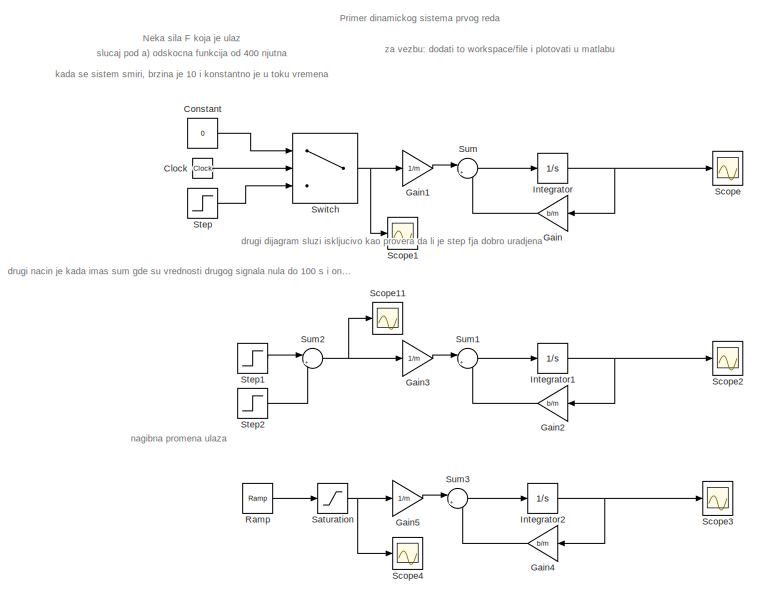
[diagram: root canvas - part 1/5, top left region]
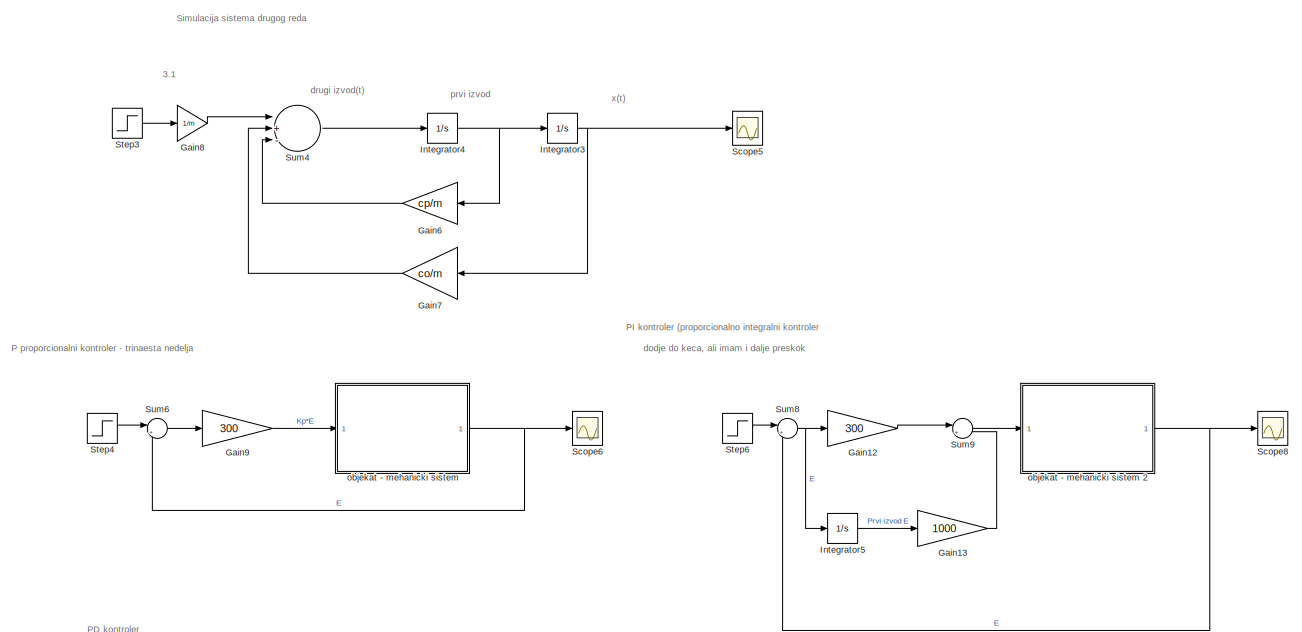
[diagram: root canvas - part 2/5, central region]
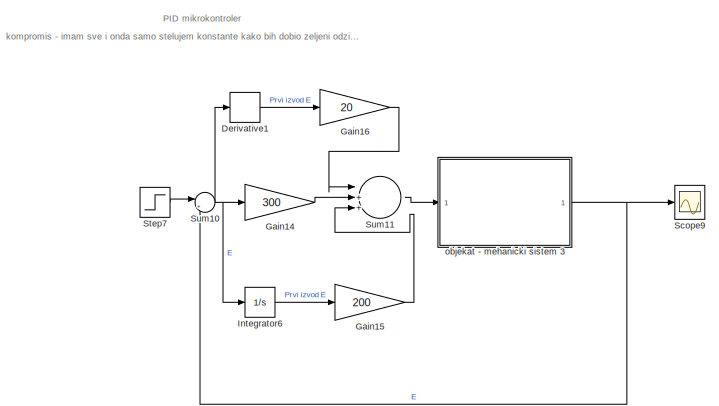
[diagram: root canvas - part 3/5, middle right region]
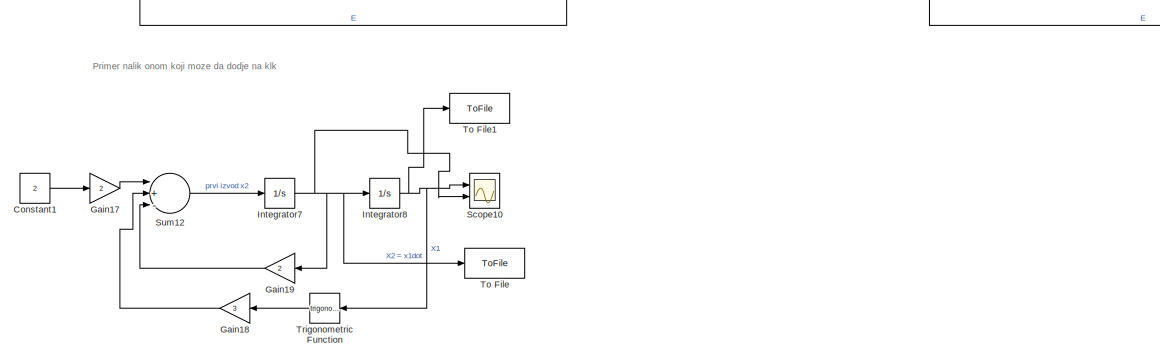
[diagram: root canvas - part 4/5, bottom right region]
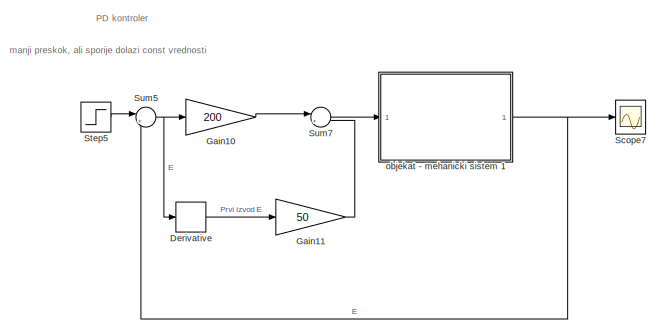
[diagram: root canvas - part 5/5, bottom center region]
MODEL slx_e0392a713f80
KIND model
CONFIG AbsTol = auto
CONFIG EnableMultiTasking = off
CONFIG FixedStep = .01
CONFIG MaxStep = auto
CONFIG MinStep = auto
CONFIG RelTol = 1e-3
CONFIG SampleTimeConstraint = Unconstrained
CONFIG Solver = ode4
CONFIG SolverName = ode4
CONFIG StartTime = 0.0
CONFIG StopTime = 200
BLOCK [Clock] Clock
BLOCK [Constant] Constant
  Value = 0
BLOCK [Constant] Constant1
  Value = 2
BLOCK [Derivative] Derivative
BLOCK [Derivative] Derivative1
BLOCK [Gain] Gain
  Gain = b/m
  OutDataTypeStr = Inherit: Inherit via internal rule
  ParamDataTypeStr = Inherit: Inherit via internal rule
  SaturateOnIntegerOverflow = off
BLOCK [Gain] Gain1
  Gain = 1/m
  OutDataTypeStr = Inherit: Inherit via internal rule
  ParamDataTypeStr = Inherit: Inherit via internal rule
  SaturateOnIntegerOverflow = off
BLOCK [Gain] Gain10
  Gain = 200
  OutDataTypeStr = Inherit: Inherit via internal rule
  ParamDataTypeStr = Inherit: Inherit via internal rule
  SaturateOnIntegerOverflow = off
BLOCK [Gain] Gain11
  Gain = 50
  OutDataTypeStr = Inherit: Inherit via internal rule
  ParamDataTypeStr = Inherit: Inherit via internal rule
  SaturateOnIntegerOverflow = off
BLOCK [Gain] Gain12
  Gain = 300
  OutDataTypeStr = Inherit: Inherit via internal rule
  ParamDataTypeStr = Inherit: Inherit via internal rule
  SaturateOnIntegerOverflow = off
BLOCK [Gain] Gain13
  Gain = 1000
  OutDataTypeStr = Inherit: Inherit via internal rule
  ParamDataTypeStr = Inherit: Inherit via internal rule
  SaturateOnIntegerOverflow = off
BLOCK [Gain] Gain14
  Gain = 300
  OutDataTypeStr = Inherit: Inherit via internal rule
  ParamDataTypeStr = Inherit: Inherit via internal rule
  SaturateOnIntegerOverflow = off
BLOCK [Gain] Gain15
  Gain = 200
  OutDataTypeStr = Inherit: Inherit via internal rule
  ParamDataTypeStr = Inherit: Inherit via internal rule
  SaturateOnIntegerOverflow = off
BLOCK [Gain] Gain16
  Gain = 20
  OutDataTypeStr = Inherit: Inherit via internal rule
  ParamDataTypeStr = Inherit: Inherit via internal rule
  SaturateOnIntegerOverflow = off
BLOCK [Gain] Gain17
  Gain = 2
  OutDataTypeStr = Inherit: Inherit via internal rule
  ParamDataTypeStr = Inherit: Inherit via internal rule
  SaturateOnIntegerOverflow = off
BLOCK [Gain] Gain18
  Gain = 3
  OutDataTypeStr = Inherit: Inherit via internal rule
  ParamDataTypeStr = Inherit: Inherit via internal rule
  SaturateOnIntegerOverflow = off
BLOCK [Gain] Gain19
  Gain = 2
  OutDataTypeStr = Inherit: Inherit via internal rule
  ParamDataTypeStr = Inherit: Inherit via internal rule
  SaturateOnIntegerOverflow = off
BLOCK [Gain] Gain2
  Gain = b/m
  OutDataTypeStr = Inherit: Inherit via internal rule
  ParamDataTypeStr = Inherit: Inherit via internal rule
  SaturateOnIntegerOverflow = off
BLOCK [Gain] Gain3
  Gain = 1/m
  OutDataTypeStr = Inherit: Inherit via internal rule
  ParamDataTypeStr = Inherit: Inherit via internal rule
  SaturateOnIntegerOverflow = off
BLOCK [Gain] Gain4
  Gain = b/m
  OutDataTypeStr = Inherit: Inherit via internal rule
  ParamDataTypeStr = Inherit: Inherit via internal rule
  SaturateOnIntegerOverflow = off
BLOCK [Gain] Gain5
  Gain = 1/m
  OutDataTypeStr = Inherit: Inherit via internal rule
  ParamDataTypeStr = Inherit: Inherit via internal rule
  SaturateOnIntegerOverflow = off
BLOCK [Gain] Gain6
  Gain = cp/m
  OutDataTypeStr = Inherit: Inherit via internal rule
  ParamDataTypeStr = Inherit: Inherit via internal rule
  SaturateOnIntegerOverflow = off
BLOCK [Gain] Gain7
  Gain = co/m
  OutDataTypeStr = Inherit: Inherit via internal rule
  ParamDataTypeStr = Inherit: Inherit via internal rule
  SaturateOnIntegerOverflow = off
BLOCK [Gain] Gain8
  Gain = 1/m
  OutDataTypeStr = Inherit: Inherit via internal rule
  ParamDataTypeStr = Inherit: Inherit via internal rule
  SaturateOnIntegerOverflow = off
BLOCK [Gain] Gain9
  Gain = 300
  OutDataTypeStr = Inherit: Inherit via internal rule
  ParamDataTypeStr = Inherit: Inherit via internal rule
  SaturateOnIntegerOverflow = off
BLOCK [Integrator] Integrator
  Ports = [1, 1]
BLOCK [Integrator] Integrator1
  Ports = [1, 1]
BLOCK [Integrator] Integrator2
  Ports = [1, 1]
BLOCK [Integrator] Integrator3
  Ports = [1, 1]
BLOCK [Integrator] Integrator4
  Ports = [1, 1]
BLOCK [Integrator] Integrator5
  Ports = [1, 1]
BLOCK [Integrator] Integrator6
  Ports = [1, 1]
BLOCK [Integrator] Integrator7
  Ports = [1, 1]
BLOCK [Integrator] Integrator8
  Ports = [1, 1]
BLOCK [Reference] Ramp  REF=simulink/Sources/Ramp
  Ports = [0, 1]
  SourceBlock = simulink/Sources/Ramp
  SourceProductBaseCode = SL
  SourceProductName = Simulink
  SourceType = Ramp
BLOCK [Saturate] Saturation
  InputPortMap = u0
  LowerLimit = 0
  Ports = [1, 1]
  UpperLimit = 2000
BLOCK [Scope] Scope
  Floating = off
  NumInputPorts = 1
  Ports = [1]
  ScopeSpecificationString = Simulink.scopes.TimeScopeBlockCfg('CurrentConfiguration', extmgr.ConfigurationSet(extmgr.Configuration('Core','General UI',true),extmgr.Configuration('Core','Source UI',true),extmgr.Configuration('Sources','WiredSimulink',true),extmgr.Configuration('Visuals','Time Domain',true,'SerializedDisplays',{struct('MinYLimReal','-4.75816','MaxYLimReal','42.82348','YLabelReal','','MinYLimMag','0.00000','Max...<+1417ch>
BLOCK [Scope] Scope1
  Floating = off
  NumInputPorts = 1
  Ports = [1]
  ScopeSpecificationString = Simulink.scopes.TimeScopeBlockCfg('CurrentConfiguration', extmgr.ConfigurationSet(extmgr.Configuration('Core','General UI',true),extmgr.Configuration('Core','Source UI',true),extmgr.Configuration('Sources','WiredSimulink',true,'DataLoggingVariableName','ScopeData1'),extmgr.Configuration('Visuals','Time Domain',true,'SerializedDisplays',{struct('MinYLimReal','-50.00000','MaxYLimReal','450.00000','Y...<+1408ch>
BLOCK [Scope] Scope10
  Floating = off
  NumInputPorts = 2
  Ports = [2]
  ScopeSpecificationString = Simulink.scopes.TimeScopeBlockCfg('CurrentConfiguration', extmgr.ConfigurationSet(extmgr.Configuration('Core','General UI',true),extmgr.Configuration('Core','Source UI',true),extmgr.Configuration('Sources','WiredSimulink',true,'DataLoggingVariableName','ScopeData5'),extmgr.Configuration('Visuals','Time Domain',true,'SerializedDisplays',{struct('MinYLimReal','-0.15932','MaxYLimReal','1.43386','YLab...<+2231ch>
BLOCK [Scope] Scope11
  Floating = off
  NumInputPorts = 1
  Ports = [1]
  ScopeSpecificationString = Simulink.scopes.TimeScopeBlockCfg('CurrentConfiguration', extmgr.ConfigurationSet(extmgr.Configuration('Core','General UI',true),extmgr.Configuration('Core','Source UI',true),extmgr.Configuration('Sources','WiredSimulink',true,'DataLoggingVariableName','ScopeData1'),extmgr.Configuration('Visuals','Time Domain',true,'SerializedDisplays',{struct('MinYLimReal','-50.00000','MaxYLimReal','450.00000','Y...<+1406ch>
BLOCK [Scope] Scope2
  Floating = off
  NumInputPorts = 1
  Ports = [1]
  ScopeSpecificationString = Simulink.scopes.TimeScopeBlockCfg('CurrentConfiguration', extmgr.ConfigurationSet(extmgr.Configuration('Core','General UI',true),extmgr.Configuration('Core','Source UI',true),extmgr.Configuration('Sources','WiredSimulink',true,'DataLoggingVariableName','ScopeData2'),extmgr.Configuration('Visuals','Time Domain',true,'SerializedDisplays',{struct('MinYLimReal','-4.75805','MaxYLimReal','42.82241','YLa...<+1455ch>
BLOCK [Scope] Scope3
  Floating = off
  NumInputPorts = 1
  Ports = [1]
  ScopeSpecificationString = Simulink.scopes.TimeScopeBlockCfg('CurrentConfiguration', extmgr.ConfigurationSet(extmgr.Configuration('Core','General UI',true),extmgr.Configuration('Core','Source UI',true),extmgr.Configuration('Sources','WiredSimulink',true,'DataLoggingVariableName','ScopeData3'),extmgr.Configuration('Visuals','Time Domain',true,'SerializedDisplays',{struct('MinYLimReal','-42.73732','MaxYLimReal','384.63591','Y...<+1460ch>
BLOCK [Scope] Scope4
  Floating = off
  NumInputPorts = 1
  Ports = [1]
  ScopeSpecificationString = Simulink.scopes.TimeScopeBlockCfg('CurrentConfiguration', extmgr.ConfigurationSet(extmgr.Configuration('Core','General UI',true),extmgr.Configuration('Core','Source UI',true),extmgr.Configuration('Sources','WiredSimulink',true,'DataLoggingVariableName','ScopeData4'),extmgr.Configuration('Visuals','Time Domain',true,'SerializedDisplays',{struct('MinYLimReal','-250.00000','MaxYLimReal','2250.00000',...<+1420ch>
BLOCK [Scope] Scope5
  Floating = off
  NumInputPorts = 1
  Ports = [1]
  ScopeSpecificationString = Simulink.scopes.TimeScopeBlockCfg('CurrentConfiguration', extmgr.ConfigurationSet(extmgr.Configuration('Core','General UI',true),extmgr.Configuration('Core','Source UI',true),extmgr.Configuration('Sources','WiredSimulink',true,'DataLoggingVariableName','ScopeData5'),extmgr.Configuration('Visuals','Time Domain',true,'SerializedDisplays',{struct('MinYLimReal','-0.625','MaxYLimReal','5.625','YLabelRe...<+1440ch>
BLOCK [Scope] Scope6
  Floating = off
  NumInputPorts = 1
  Ports = [1]
  ScopeSpecificationString = Simulink.scopes.TimeScopeBlockCfg('CurrentConfiguration', extmgr.ConfigurationSet(extmgr.Configuration('Core','General UI',true),extmgr.Configuration('Core','Source UI',true),extmgr.Configuration('Sources','WiredSimulink',true,'DataLoggingVariableName','ScopeData1'),extmgr.Configuration('Visuals','Time Domain',true,'SerializedDisplays',{struct('MinYLimReal','-0.15932','MaxYLimReal','1.43386','YLab...<+1460ch>
BLOCK [Scope] Scope7
  Floating = off
  NumInputPorts = 1
  Ports = [1]
  ScopeSpecificationString = Simulink.scopes.TimeScopeBlockCfg('CurrentConfiguration', extmgr.ConfigurationSet(extmgr.Configuration('Core','General UI',true),extmgr.Configuration('Core','Source UI',true),extmgr.Configuration('Sources','WiredSimulink',true,'DataLoggingVariableName','ScopeData2'),extmgr.Configuration('Visuals','Time Domain',true,'SerializedDisplays',{struct('MinYLimReal','-0.15932','MaxYLimReal','1.43386','YLab...<+1491ch>
BLOCK [Scope] Scope8
  Floating = off
  NumInputPorts = 1
  Ports = [1]
  ScopeSpecificationString = Simulink.scopes.TimeScopeBlockCfg('CurrentConfiguration', extmgr.ConfigurationSet(extmgr.Configuration('Core','General UI',true),extmgr.Configuration('Core','Source UI',true),extmgr.Configuration('Sources','WiredSimulink',true,'DataLoggingVariableName','ScopeData3'),extmgr.Configuration('Visuals','Time Domain',true,'SerializedDisplays',{struct('MinYLimReal','-0.15932','MaxYLimReal','1.43386','YLab...<+1490ch>
BLOCK [Scope] Scope9
  Floating = off
  NumInputPorts = 1
  Ports = [1]
  ScopeSpecificationString = Simulink.scopes.TimeScopeBlockCfg('CurrentConfiguration', extmgr.ConfigurationSet(extmgr.Configuration('Core','General UI',true),extmgr.Configuration('Core','Source UI',true),extmgr.Configuration('Sources','WiredSimulink',true,'DataLoggingVariableName','ScopeData4'),extmgr.Configuration('Visuals','Time Domain',true,'SerializedDisplays',{struct('MinYLimReal','-0.15932','MaxYLimReal','1.43386','YLab...<+1490ch>
BLOCK [Step] Step
  After = 400
  SampleTime = 0
  Time = 0
BLOCK [Step] Step1
  After = 400
  SampleTime = 0
  Time = 0
BLOCK [Step] Step2
  After = -400
  SampleTime = 0
  Time = 100
BLOCK [Step] Step3
  After = 100
  SampleTime = 0
  Time = 0
BLOCK [Step] Step4
  SampleTime = 0
  Time = 0
BLOCK [Step] Step5
  SampleTime = 0
  Time = 0
BLOCK [Step] Step6
  SampleTime = 0
  Time = 0
BLOCK [Step] Step7
  SampleTime = 0
  Time = 0
BLOCK [Sum] Sum
  IconShape = round
  InputSameDT = off
  Inputs = |+-
  OutDataTypeStr = Inherit: Inherit via internal rule
  Ports = [2, 1]
  SaturateOnIntegerOverflow = off
BLOCK [Sum] Sum1
  IconShape = round
  InputSameDT = off
  Inputs = |+-
  OutDataTypeStr = Inherit: Inherit via internal rule
  Ports = [2, 1]
  SaturateOnIntegerOverflow = off
BLOCK [Sum] Sum10
  IconShape = round
  InputSameDT = off
  Inputs = |+-
  OutDataTypeStr = Inherit: Inherit via internal rule
  Ports = [2, 1]
  SaturateOnIntegerOverflow = off
BLOCK [Sum] Sum11
  InputSameDT = off
  Inputs = |+++
  OutDataTypeStr = Inherit: Inherit via internal rule
  Ports = [3, 1]
  SaturateOnIntegerOverflow = off
BLOCK [Sum] Sum12
  InputSameDT = off
  Inputs = |+--
  OutDataTypeStr = Inherit: Inherit via internal rule
  Ports = [3, 1]
  SaturateOnIntegerOverflow = off
BLOCK [Sum] Sum2
  IconShape = round
  InputSameDT = off
  Inputs = |++
  OutDataTypeStr = Inherit: Inherit via internal rule
  Ports = [2, 1]
  SaturateOnIntegerOverflow = off
BLOCK [Sum] Sum3
  IconShape = round
  InputSameDT = off
  Inputs = |+-
  OutDataTypeStr = Inherit: Inherit via internal rule
  Ports = [2, 1]
  SaturateOnIntegerOverflow = off
BLOCK [Sum] Sum4
  InputSameDT = off
  Inputs = |+--
  OutDataTypeStr = Inherit: Inherit via internal rule
  Ports = [3, 1]
  SaturateOnIntegerOverflow = off
BLOCK [Sum] Sum5
  IconShape = round
  InputSameDT = off
  Inputs = |+-
  OutDataTypeStr = Inherit: Inherit via internal rule
  Ports = [2, 1]
  SaturateOnIntegerOverflow = off
BLOCK [Sum] Sum6
  IconShape = round
  InputSameDT = off
  Inputs = |+-
  OutDataTypeStr = Inherit: Inherit via internal rule
  Ports = [2, 1]
  SaturateOnIntegerOverflow = off
BLOCK [Sum] Sum7
  IconShape = round
  InputSameDT = off
  Inputs = |++
  OutDataTypeStr = Inherit: Inherit via internal rule
  Ports = [2, 1]
  SaturateOnIntegerOverflow = off
BLOCK [Sum] Sum8
  IconShape = round
  InputSameDT = off
  Inputs = |+-
  OutDataTypeStr = Inherit: Inherit via internal rule
  Ports = [2, 1]
  SaturateOnIntegerOverflow = off
BLOCK [Sum] Sum9
  IconShape = round
  InputSameDT = off
  Inputs = |++
  OutDataTypeStr = Inherit: Inherit via internal rule
  Ports = [2, 1]
  SaturateOnIntegerOverflow = off
BLOCK [Switch] Switch
  Criteria = u2 > Threshold
  InputSameDT = off
  SaturateOnIntegerOverflow = off
  Threshold = 100
BLOCK [ToFile] To File
  Filename = prvaJna.mat
  MatrixName = x2
  Ports = [1]
BLOCK [ToFile] To File1
  Filename = drugaJna.mat
  MatrixName = x1
  Ports = [1]
BLOCK [Trigonometry] Trigonometric Function
  Ports = [1, 1]
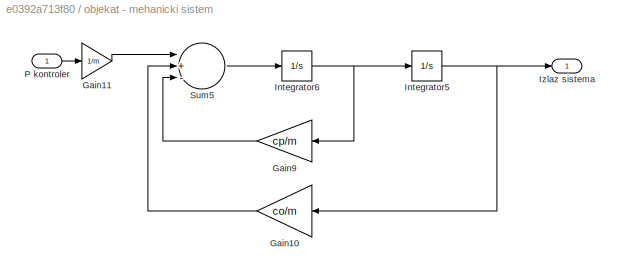
BLOCK [SubSystem] objekat - mehanicki sistem 
  Ports = [1, 1]
  RequestExecContextInheritance = off
BLOCK [Gain] objekat - mehanicki sistem /Gain10
  Gain = co/m
  OutDataTypeStr = Inherit: Inherit via internal rule
  ParamDataTypeStr = Inherit: Inherit via internal rule
  SaturateOnIntegerOverflow = off
BLOCK [Gain] objekat - mehanicki sistem /Gain11
  Gain = 1/m
  OutDataTypeStr = Inherit: Inherit via internal rule
  ParamDataTypeStr = Inherit: Inherit via internal rule
  SaturateOnIntegerOverflow = off
BLOCK [Gain] objekat - mehanicki sistem /Gain9
  Gain = cp/m
  OutDataTypeStr = Inherit: Inherit via internal rule
  ParamDataTypeStr = Inherit: Inherit via internal rule
  SaturateOnIntegerOverflow = off
BLOCK [Integrator] objekat - mehanicki sistem /Integrator5
  Ports = [1, 1]
BLOCK [Integrator] objekat - mehanicki sistem /Integrator6
  Ports = [1, 1]
BLOCK [Outport] objekat - mehanicki sistem /Izlaz sistema
  IconDisplay = Port number
BLOCK [Inport] objekat - mehanicki sistem /P kontroler
  IconDisplay = Port number
BLOCK [Sum] objekat - mehanicki sistem /Sum5
  InputSameDT = off
  Inputs = |+--
  OutDataTypeStr = Inherit: Inherit via internal rule
  Ports = [3, 1]
  SaturateOnIntegerOverflow = off
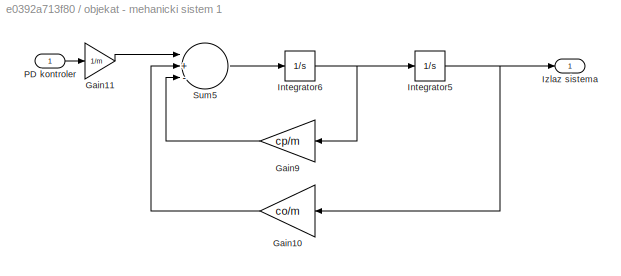
BLOCK [SubSystem] objekat - mehanicki sistem 1
  Ports = [1, 1]
  RequestExecContextInheritance = off
BLOCK [Gain] objekat - mehanicki sistem 1/Gain10
  Gain = co/m
  OutDataTypeStr = Inherit: Inherit via internal rule
  ParamDataTypeStr = Inherit: Inherit via internal rule
  SaturateOnIntegerOverflow = off
BLOCK [Gain] objekat - mehanicki sistem 1/Gain11
  Gain = 1/m
  OutDataTypeStr = Inherit: Inherit via internal rule
  ParamDataTypeStr = Inherit: Inherit via internal rule
  SaturateOnIntegerOverflow = off
BLOCK [Gain] objekat - mehanicki sistem 1/Gain9
  Gain = cp/m
  OutDataTypeStr = Inherit: Inherit via internal rule
  ParamDataTypeStr = Inherit: Inherit via internal rule
  SaturateOnIntegerOverflow = off
BLOCK [Integrator] objekat - mehanicki sistem 1/Integrator5
  Ports = [1, 1]
BLOCK [Integrator] objekat - mehanicki sistem 1/Integrator6
  Ports = [1, 1]
BLOCK [Outport] objekat - mehanicki sistem 1/Izlaz sistema
  IconDisplay = Port number
BLOCK [Inport] objekat - mehanicki sistem 1/PD kontroler
  IconDisplay = Port number
BLOCK [Sum] objekat - mehanicki sistem 1/Sum5
  InputSameDT = off
  Inputs = |+--
  OutDataTypeStr = Inherit: Inherit via internal rule
  Ports = [3, 1]
  SaturateOnIntegerOverflow = off
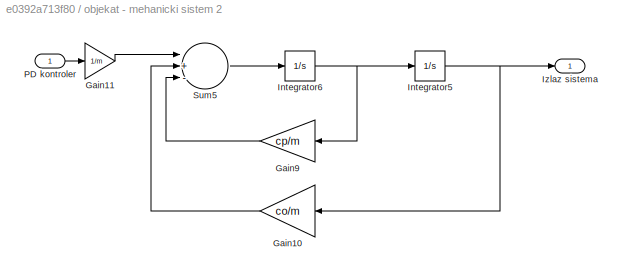
BLOCK [SubSystem] objekat - mehanicki sistem 2
  Ports = [1, 1]
  RequestExecContextInheritance = off
BLOCK [Gain] objekat - mehanicki sistem 2/Gain10
  Gain = co/m
  OutDataTypeStr = Inherit: Inherit via internal rule
  ParamDataTypeStr = Inherit: Inherit via internal rule
  SaturateOnIntegerOverflow = off
BLOCK [Gain] objekat - mehanicki sistem 2/Gain11
  Gain = 1/m
  OutDataTypeStr = Inherit: Inherit via internal rule
  ParamDataTypeStr = Inherit: Inherit via internal rule
  SaturateOnIntegerOverflow = off
BLOCK [Gain] objekat - mehanicki sistem 2/Gain9
  Gain = cp/m
  OutDataTypeStr = Inherit: Inherit via internal rule
  ParamDataTypeStr = Inherit: Inherit via internal rule
  SaturateOnIntegerOverflow = off
BLOCK [Integrator] objekat - mehanicki sistem 2/Integrator5
  Ports = [1, 1]
BLOCK [Integrator] objekat - mehanicki sistem 2/Integrator6
  Ports = [1, 1]
BLOCK [Outport] objekat - mehanicki sistem 2/Izlaz sistema
  IconDisplay = Port number
BLOCK [Inport] objekat - mehanicki sistem 2/PD kontroler
  IconDisplay = Port number
BLOCK [Sum] objekat - mehanicki sistem 2/Sum5
  InputSameDT = off
  Inputs = |+--
  OutDataTypeStr = Inherit: Inherit via internal rule
  Ports = [3, 1]
  SaturateOnIntegerOverflow = off
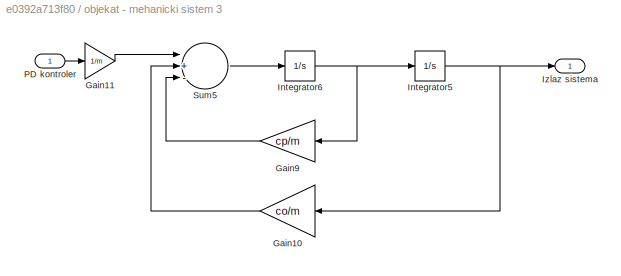
BLOCK [SubSystem] objekat - mehanicki sistem 3
  Ports = [1, 1]
  RequestExecContextInheritance = off
BLOCK [Gain] objekat - mehanicki sistem 3/Gain10
  Gain = co/m
  OutDataTypeStr = Inherit: Inherit via internal rule
  ParamDataTypeStr = Inherit: Inherit via internal rule
  SaturateOnIntegerOverflow = off
BLOCK [Gain] objekat - mehanicki sistem 3/Gain11
  Gain = 1/m
  OutDataTypeStr = Inherit: Inherit via internal rule
  ParamDataTypeStr = Inherit: Inherit via internal rule
  SaturateOnIntegerOverflow = off
BLOCK [Gain] objekat - mehanicki sistem 3/Gain9
  Gain = cp/m
  OutDataTypeStr = Inherit: Inherit via internal rule
  ParamDataTypeStr = Inherit: Inherit via internal rule
  SaturateOnIntegerOverflow = off
BLOCK [Integrator] objekat - mehanicki sistem 3/Integrator5
  Ports = [1, 1]
BLOCK [Integrator] objekat - mehanicki sistem 3/Integrator6
  Ports = [1, 1]
BLOCK [Outport] objekat - mehanicki sistem 3/Izlaz sistema
  IconDisplay = Port number
BLOCK [Inport] objekat - mehanicki sistem 3/PD kontroler
  IconDisplay = Port number
BLOCK [Sum] objekat - mehanicki sistem 3/Sum5
  InputSameDT = off
  Inputs = |+--
  OutDataTypeStr = Inherit: Inherit via internal rule
  Ports = [3, 1]
  SaturateOnIntegerOverflow = off
ANNOTATION (root): 3.1
ANNOTATION (root): Neka sila F koja je ulaz
ANNOTATION (root): P proporcionalni kontroler - trinaesta nedelja
ANNOTATION (root): PD kontroler
ANNOTATION (root): PI kontroler (proporcionalno integralni kontroler
ANNOTATION (root): PID mikrokontroler
ANNOTATION (root): Primer dinamickog sistema prvog reda
ANNOTATION (root): Primer nalik onom koji moze da dodje na klk
ANNOTATION (root): Simulacija sistema drugog reda
ANNOTATION (root): dodje do keca, ali imam i dalje preskok
ANNOTATION (root): drugi dijagram sluzi iskljucivo kao provera da li je step fja dobro uradjena
ANNOTATION (root): drugi izvod(t)
ANNOTATION (root): drugi nacin je kada imas sum gde su vrednosti drugog signala nula do 100 s i onda pad na -400
ANNOTATION (root): kada se sistem smiri, brzina je 10 i konstantno je u toku vremena
ANNOTATION (root): kompromis - imam sve i onda samo stelujem konstante kako bih dobio zeljeni odziv sistema
ANNOTATION (root): manji preskok, ali sporije dolazi const vrednosti
ANNOTATION (root): nagibna promena ulaza
ANNOTATION (root): prvi izvod
ANNOTATION (root): slucaj pod a) odskocna funkcija od 400 njutna
ANNOTATION (root): x(t)
ANNOTATION (root): za vezbu: dodati to workspace/file i plotovati u matlabu
LINE Clock:1 -> Switch:2
LINE Constant1:1 -> Gain17:1
LINE Constant:1 -> Switch:1
LINE Derivative1:1 -> Gain16:1
LINE Derivative:1 -> Gain11:1
LINE Gain10:1 -> Sum7:1
LINE Gain11:1 -> Sum7:2
LINE Gain12:1 -> Sum9:1
LINE Gain13:1 -> Sum9:2
LINE Gain14:1 -> Sum11:2
LINE Gain15:1 -> Sum11:3
LINE Gain16:1 -> Sum11:1
LINE Gain17:1 -> Sum12:1
LINE Gain18:1 -> Sum12:2
LINE Gain19:1 -> Sum12:3
LINE Gain1:1 -> Sum:1
LINE Gain2:1 -> Sum1:2
LINE Gain3:1 -> Sum1:1
LINE Gain4:1 -> Sum3:2
LINE Gain5:1 -> Sum3:1
LINE Gain6:1 -> Sum4:3
LINE Gain7:1 -> Sum4:2
LINE Gain8:1 -> Sum4:1
LINE Gain9:1 -> objekat - mehanicki sistem :1
LINE Gain:1 -> Sum:2
NET Integrator1:1 -> Gain2:1, Scope2:1
NET Integrator2:1 -> Gain4:1, Scope3:1
NET Integrator3:1 -> Gain7:1, Scope5:1
NET Integrator4:1 -> Gain6:1, Integrator3:1
LINE Integrator5:1 -> Gain13:1
LINE Integrator6:1 -> Gain15:1
NET Integrator7:1 -> Gain19:1, Integrator8:1, Scope10:2, To File:1
NET Integrator8:1 -> Scope10:1, To File1:1, Trigonometric Function:1
NET Integrator:1 -> Gain:1, Scope:1
LINE Ramp:1 -> Saturation:1
NET Saturation:1 -> Gain5:1, Scope4:1
LINE Step1:1 -> Sum2:1
LINE Step2:1 -> Sum2:2
LINE Step3:1 -> Gain8:1
LINE Step4:1 -> Sum6:1
LINE Step5:1 -> Sum5:1
LINE Step6:1 -> Sum8:1
LINE Step7:1 -> Sum10:1
LINE Step:1 -> Switch:3
NET Sum10:1 -> Derivative1:1, Gain14:1, Integrator6:1
LINE Sum11:1 -> objekat - mehanicki sistem 3:1
LINE Sum12:1 -> Integrator7:1
LINE Sum1:1 -> Integrator1:1
NET Sum2:1 -> Gain3:1, Scope11:1
LINE Sum3:1 -> Integrator2:1
LINE Sum4:1 -> Integrator4:1
NET Sum5:1 -> Derivative:1, Gain10:1
LINE Sum6:1 -> Gain9:1
LINE Sum7:1 -> objekat - mehanicki sistem 1:1
NET Sum8:1 -> Gain12:1, Integrator5:1
LINE Sum9:1 -> objekat - mehanicki sistem 2:1
LINE Sum:1 -> Integrator:1
NET Switch:1 -> Gain1:1, Scope1:1
LINE Trigonometric Function:1 -> Gain18:1
LINE objekat - mehanicki sistem /Gain10:1 -> objekat - mehanicki sistem /Sum5:2
LINE objekat - mehanicki sistem /Gain11:1 -> objekat - mehanicki sistem /Sum5:1
LINE objekat - mehanicki sistem /Gain9:1 -> objekat - mehanicki sistem /Sum5:3
NET objekat - mehanicki sistem /Integrator5:1 -> objekat - mehanicki sistem /Gain10:1, objekat - mehanicki sistem /Izlaz sistema:1
NET objekat - mehanicki sistem /Integrator6:1 -> objekat - mehanicki sistem /Gain9:1, objekat - mehanicki sistem /Integrator5:1
LINE objekat - mehanicki sistem /P kontroler:1 -> objekat - mehanicki sistem /Gain11:1
LINE objekat - mehanicki sistem /Sum5:1 -> objekat - mehanicki sistem /Integrator6:1
LINE objekat - mehanicki sistem 1/Gain10:1 -> objekat - mehanicki sistem 1/Sum5:2
LINE objekat - mehanicki sistem 1/Gain11:1 -> objekat - mehanicki sistem 1/Sum5:1
LINE objekat - mehanicki sistem 1/Gain9:1 -> objekat - mehanicki sistem 1/Sum5:3
NET objekat - mehanicki sistem 1/Integrator5:1 -> objekat - mehanicki sistem 1/Gain10:1, objekat - mehanicki sistem 1/Izlaz sistema:1
NET objekat - mehanicki sistem 1/Integrator6:1 -> objekat - mehanicki sistem 1/Gain9:1, objekat - mehanicki sistem 1/Integrator5:1
LINE objekat - mehanicki sistem 1/PD kontroler:1 -> objekat - mehanicki sistem 1/Gain11:1
LINE objekat - mehanicki sistem 1/Sum5:1 -> objekat - mehanicki sistem 1/Integrator6:1
NET objekat - mehanicki sistem 1:1 -> Scope7:1, Sum5:2
LINE objekat - mehanicki sistem 2/Gain10:1 -> objekat - mehanicki sistem 2/Sum5:2
LINE objekat - mehanicki sistem 2/Gain11:1 -> objekat - mehanicki sistem 2/Sum5:1
LINE objekat - mehanicki sistem 2/Gain9:1 -> objekat - mehanicki sistem 2/Sum5:3
NET objekat - mehanicki sistem 2/Integrator5:1 -> objekat - mehanicki sistem 2/Gain10:1, objekat - mehanicki sistem 2/Izlaz sistema:1
NET objekat - mehanicki sistem 2/Integrator6:1 -> objekat - mehanicki sistem 2/Gain9:1, objekat - mehanicki sistem 2/Integrator5:1
LINE objekat - mehanicki sistem 2/PD kontroler:1 -> objekat - mehanicki sistem 2/Gain11:1
LINE objekat - mehanicki sistem 2/Sum5:1 -> objekat - mehanicki sistem 2/Integrator6:1
NET objekat - mehanicki sistem 2:1 -> Scope8:1, Sum8:2
LINE objekat - mehanicki sistem 3/Gain10:1 -> objekat - mehanicki sistem 3/Sum5:2
LINE objekat - mehanicki sistem 3/Gain11:1 -> objekat - mehanicki sistem 3/Sum5:1
LINE objekat - mehanicki sistem 3/Gain9:1 -> objekat - mehanicki sistem 3/Sum5:3
NET objekat - mehanicki sistem 3/Integrator5:1 -> objekat - mehanicki sistem 3/Gain10:1, objekat - mehanicki sistem 3/Izlaz sistema:1
NET objekat - mehanicki sistem 3/Integrator6:1 -> objekat - mehanicki sistem 3/Gain9:1, objekat - mehanicki sistem 3/Integrator5:1
LINE objekat - mehanicki sistem 3/PD kontroler:1 -> objekat - mehanicki sistem 3/Gain11:1
LINE objekat - mehanicki sistem 3/Sum5:1 -> objekat - mehanicki sistem 3/Integrator6:1
NET objekat - mehanicki sistem 3:1 -> Scope9:1, Sum10:2
NET objekat - mehanicki sistem :1 -> Scope6:1, Sum6:2
note: NET lines group one-source signal fan-out (src -> all destinations, sorted); 1:1 wires keep LINE
